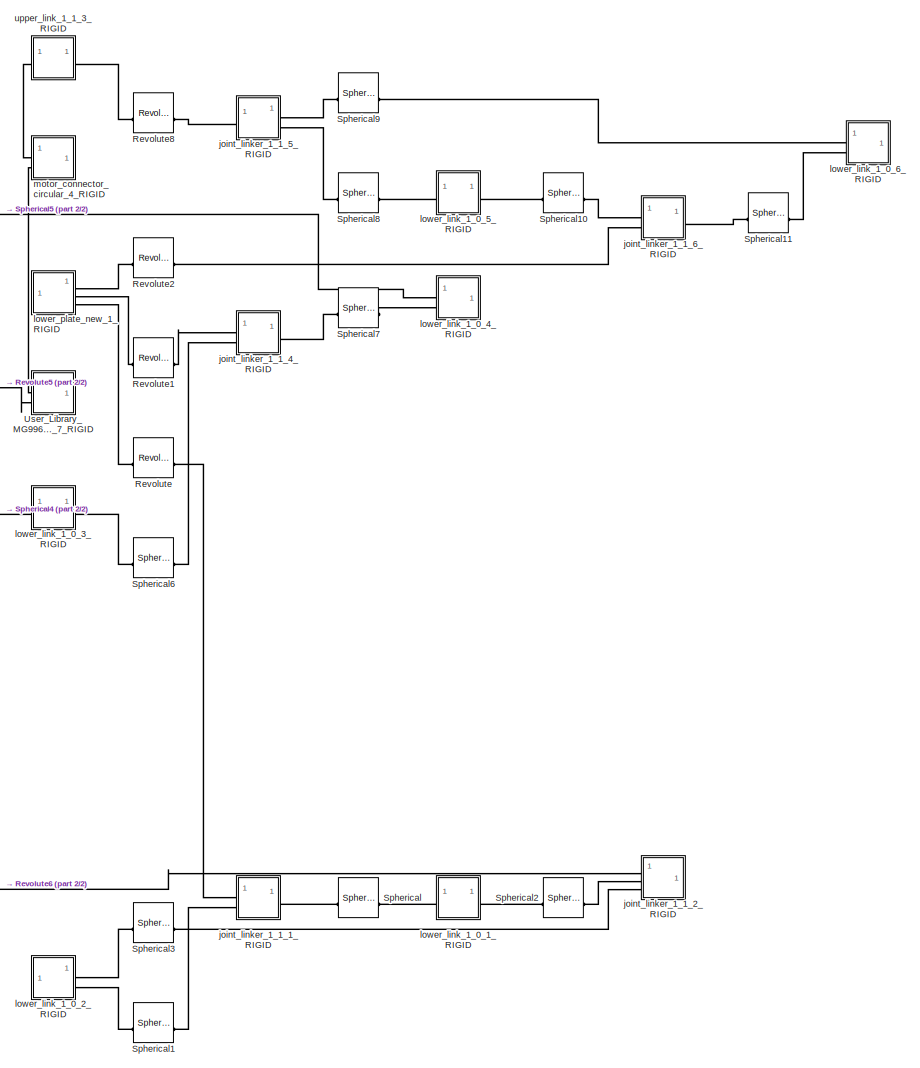
[diagram: root canvas - part 1/2, right side, full height]
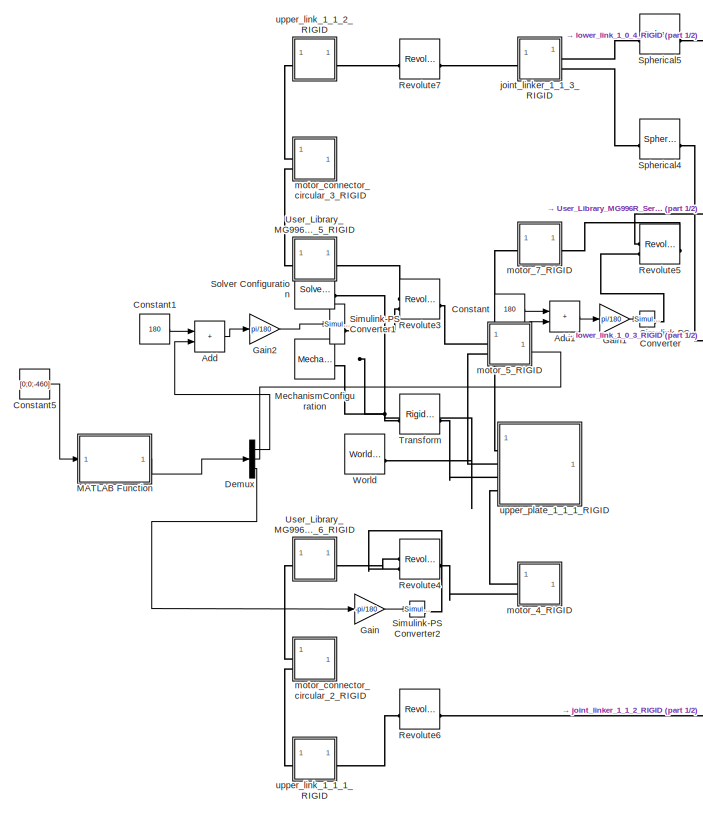
[diagram: root canvas - part 2/2, left side, full height]
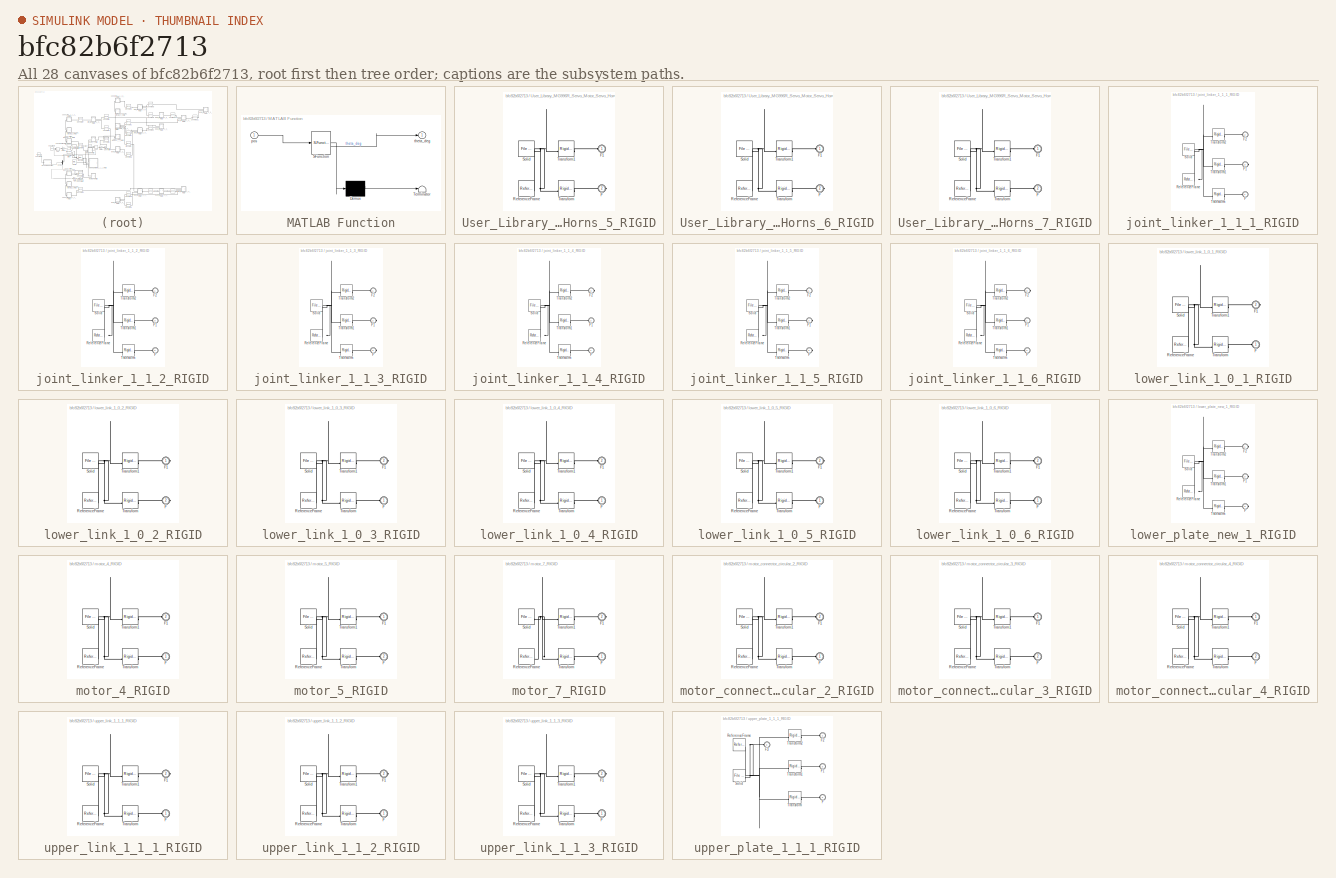
[diagram: thumbnail index - all 28 canvases of the model, root first then tree order]
MODEL slx_bfc82b6f2713
KIND model
CONFIG AbsTol = auto
CONFIG EnableMultiTasking = off
CONFIG FixedStep = auto
CONFIG MaxStep = auto
CONFIG MinStep = auto
CONFIG RelTol = 1e-3
CONFIG SampleTimeConstraint = Unconstrained
CONFIG SolverName = ode23t
CONFIG StartTime = 0.0
CONFIG StopTime = 2
WORKSPACE source: external: MATLAB File  (data not in archive)
BLOCK [Sum] Add
  IconShape = rectangular
BLOCK [Sum] Add1
  IconShape = rectangular
BLOCK [Constant] Constant
  Value = 180
BLOCK [Constant] Constant1
  Value = 180
BLOCK [Constant] Constant5
  Value = [0;0;-460]
BLOCK [Demux] Demux
  Outputs = 3
BLOCK [Gain] Gain
  Gain = -pi/180
BLOCK [Gain] Gain1
  Gain = pi/180
BLOCK [Gain] Gain2
  Gain = pi/180
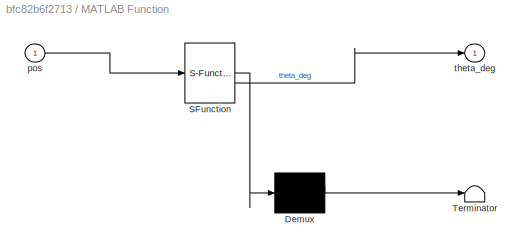
BLOCK [SubSystem] MATLAB Function
  ErrorFcn = Stateflow.Translate.translate
  LibrarySourceBlock = simulink/User-Defined\nFunctions/MATLAB Function
  PermitHierarchicalResolution = ExplicitOnly
  SFBlockType = MATLAB Function
  TreatAsAtomicUnit = on
BLOCK [Demux] MATLAB Function/ Demux 
  Outputs = 1
BLOCK [S-Function] MATLAB Function/ SFunction 
  EnableBusSupport = on
  FunctionName = sf_sfun
  PortCounts = [1 2]
  SFcnIsStateOwnerBlock = off
  SFunctionDeploymentMode = off
  Tag = Stateflow S-Function 2
BLOCK [Terminator] MATLAB Function/ Terminator 
BLOCK [Inport] MATLAB Function/pos
BLOCK [Outport] MATLAB Function/theta_deg
BLOCK [Reference] MechanismConfiguration  REF=sm_lib/Utilities/Mechanism
Configuration
  SourceBlock = sm_lib/Utilities/Mechanism\nConfiguration
  SourceType = Mechanism\nConfiguration
BLOCK [Reference] Revolute  REF=sm_lib/Joints/Revolute Joint
  SourceBlock = sm_lib/Joints/Revolute Joint
  SourceType = Revolute Joint
BLOCK [Reference] Revolute1  REF=sm_lib/Joints/Revolute Joint
  SourceBlock = sm_lib/Joints/Revolute Joint
  SourceType = Revolute Joint
BLOCK [Reference] Revolute2  REF=sm_lib/Joints/Revolute Joint
  SourceBlock = sm_lib/Joints/Revolute Joint
  SourceType = Revolute Joint
BLOCK [Reference] Revolute3  REF=sm_lib/Joints/Revolute Joint
  SourceBlock = sm_lib/Joints/Revolute Joint
  SourceType = Revolute Joint
BLOCK [Reference] Revolute4  REF=sm_lib/Joints/Revolute Joint
  SourceBlock = sm_lib/Joints/Revolute Joint
  SourceType = Revolute Joint
BLOCK [Reference] Revolute5  REF=sm_lib/Joints/Revolute Joint
  SourceBlock = sm_lib/Joints/Revolute Joint
  SourceType = Revolute Joint
BLOCK [Reference] Revolute6  REF=sm_lib/Joints/Revolute Joint
  SourceBlock = sm_lib/Joints/Revolute Joint
  SourceType = Revolute Joint
BLOCK [Reference] Revolute7  REF=sm_lib/Joints/Revolute Joint
  SourceBlock = sm_lib/Joints/Revolute Joint
  SourceType = Revolute Joint
BLOCK [Reference] Revolute8  REF=sm_lib/Joints/Revolute Joint
  SourceBlock = sm_lib/Joints/Revolute Joint
  SourceType = Revolute Joint
BLOCK [Reference] Simulink-PS Converter  REF=nesl_utility/Simulink-PS
Converter
  SourceBlock = nesl_utility/Simulink-PS\nConverter
  SourceType = Simulink-PS\nConverter
BLOCK [Reference] Simulink-PS Converter1  REF=nesl_utility/Simulink-PS
Converter
  SourceBlock = nesl_utility/Simulink-PS\nConverter
  SourceType = Simulink-PS\nConverter
BLOCK [Reference] Simulink-PS Converter2  REF=nesl_utility/Simulink-PS
Converter
  SourceBlock = nesl_utility/Simulink-PS\nConverter
  SourceType = Simulink-PS\nConverter
BLOCK [Reference] Solver Configuration  REF=nesl_utility/Solver
Configuration
  SourceBlock = nesl_utility/Solver\nConfiguration
  SourceType = Solver\nConfiguration
BLOCK [Reference] Spherical  REF=sm_lib/Joints/Spherical
Joint
  SourceBlock = sm_lib/Joints/Spherical\nJoint
  SourceType = Spherical\nJoint
BLOCK [Reference] Spherical1  REF=sm_lib/Joints/Spherical
Joint
  SourceBlock = sm_lib/Joints/Spherical\nJoint
  SourceType = Spherical\nJoint
BLOCK [Reference] Spherical10  REF=sm_lib/Joints/Spherical
Joint
  SourceBlock = sm_lib/Joints/Spherical\nJoint
  SourceType = Spherical\nJoint
BLOCK [Reference] Spherical11  REF=sm_lib/Joints/Spherical
Joint
  SourceBlock = sm_lib/Joints/Spherical\nJoint
  SourceType = Spherical\nJoint
BLOCK [Reference] Spherical2  REF=sm_lib/Joints/Spherical
Joint
  SourceBlock = sm_lib/Joints/Spherical\nJoint
  SourceType = Spherical\nJoint
BLOCK [Reference] Spherical3  REF=sm_lib/Joints/Spherical
Joint
  SourceBlock = sm_lib/Joints/Spherical\nJoint
  SourceType = Spherical\nJoint
BLOCK [Reference] Spherical4  REF=sm_lib/Joints/Spherical
Joint
  SourceBlock = sm_lib/Joints/Spherical\nJoint
  SourceType = Spherical\nJoint
BLOCK [Reference] Spherical5  REF=sm_lib/Joints/Spherical
Joint
  SourceBlock = sm_lib/Joints/Spherical\nJoint
  SourceType = Spherical\nJoint
BLOCK [Reference] Spherical6  REF=sm_lib/Joints/Spherical
Joint
  SourceBlock = sm_lib/Joints/Spherical\nJoint
  SourceType = Spherical\nJoint
BLOCK [Reference] Spherical7  REF=sm_lib/Joints/Spherical
Joint
  SourceBlock = sm_lib/Joints/Spherical\nJoint
  SourceType = Spherical\nJoint
BLOCK [Reference] Spherical8  REF=sm_lib/Joints/Spherical
Joint
  SourceBlock = sm_lib/Joints/Spherical\nJoint
  SourceType = Spherical\nJoint
BLOCK [Reference] Spherical9  REF=sm_lib/Joints/Spherical
Joint
  SourceBlock = sm_lib/Joints/Spherical\nJoint
  SourceType = Spherical\nJoint
BLOCK [Reference] Transform  REF=sm_lib/Frames and
Transforms/Rigid
Transform
  SourceBlock = sm_lib/Frames and\nTransforms/Rigid\nTransform
  SourceType = Rigid\nTransform
BLOCK [SubSystem] User_Library_MG996R_Servo_Motor_Servo_Horns_5_RIGID
BLOCK [PMIOPort] User_Library_MG996R_Servo_Motor_Servo_Horns_5_RIGID/F
  Port = 2
  Side = Right
BLOCK [PMIOPort] User_Library_MG996R_Servo_Motor_Servo_Horns_5_RIGID/F1
  Side = Left
BLOCK [Reference] User_Library_MG996R_Servo_Motor_Servo_Horns_5_RIGID/ReferenceFrame  REF=sm_lib/Frames and
Transforms/Reference
Frame
  SourceBlock = sm_lib/Frames and\nTransforms/Reference\nFrame
  SourceType = Reference\nFrame
BLOCK [Reference] User_Library_MG996R_Servo_Motor_Servo_Horns_5_RIGID/Solid  REF=sm_lib/Body Elements/File Solid
  SourceBlock = sm_lib/Body Elements/File Solid
  SourceType = File Solid
BLOCK [Reference] User_Library_MG996R_Servo_Motor_Servo_Horns_5_RIGID/Transform  REF=sm_lib/Frames and
Transforms/Rigid
Transform
  SourceBlock = sm_lib/Frames and\nTransforms/Rigid\nTransform
  SourceType = Rigid\nTransform
BLOCK [Reference] User_Library_MG996R_Servo_Motor_Servo_Horns_5_RIGID/Transform1  REF=sm_lib/Frames and
Transforms/Rigid
Transform
  SourceBlock = sm_lib/Frames and\nTransforms/Rigid\nTransform
  SourceType = Rigid\nTransform
BLOCK [SubSystem] User_Library_MG996R_Servo_Motor_Servo_Horns_6_RIGID
BLOCK [PMIOPort] User_Library_MG996R_Servo_Motor_Servo_Horns_6_RIGID/F
  Port = 2
  Side = Right
BLOCK [PMIOPort] User_Library_MG996R_Servo_Motor_Servo_Horns_6_RIGID/F1
  Side = Left
BLOCK [Reference] User_Library_MG996R_Servo_Motor_Servo_Horns_6_RIGID/ReferenceFrame  REF=sm_lib/Frames and
Transforms/Reference
Frame
  SourceBlock = sm_lib/Frames and\nTransforms/Reference\nFrame
  SourceType = Reference\nFrame
BLOCK [Reference] User_Library_MG996R_Servo_Motor_Servo_Horns_6_RIGID/Solid  REF=sm_lib/Body Elements/File Solid
  SourceBlock = sm_lib/Body Elements/File Solid
  SourceType = File Solid
BLOCK [Reference] User_Library_MG996R_Servo_Motor_Servo_Horns_6_RIGID/Transform  REF=sm_lib/Frames and
Transforms/Rigid
Transform
  SourceBlock = sm_lib/Frames and\nTransforms/Rigid\nTransform
  SourceType = Rigid\nTransform
BLOCK [Reference] User_Library_MG996R_Servo_Motor_Servo_Horns_6_RIGID/Transform1  REF=sm_lib/Frames and
Transforms/Rigid
Transform
  SourceBlock = sm_lib/Frames and\nTransforms/Rigid\nTransform
  SourceType = Rigid\nTransform
BLOCK [SubSystem] User_Library_MG996R_Servo_Motor_Servo_Horns_7_RIGID
BLOCK [PMIOPort] User_Library_MG996R_Servo_Motor_Servo_Horns_7_RIGID/F
  Port = 2
  Side = Left
BLOCK [PMIOPort] User_Library_MG996R_Servo_Motor_Servo_Horns_7_RIGID/F1
  Side = Left
BLOCK [Reference] User_Library_MG996R_Servo_Motor_Servo_Horns_7_RIGID/ReferenceFrame  REF=sm_lib/Frames and
Transforms/Reference
Frame
  SourceBlock = sm_lib/Frames and\nTransforms/Reference\nFrame
  SourceType = Reference\nFrame
BLOCK [Reference] User_Library_MG996R_Servo_Motor_Servo_Horns_7_RIGID/Solid  REF=sm_lib/Body Elements/File Solid
  SourceBlock = sm_lib/Body Elements/File Solid
  SourceType = File Solid
BLOCK [Reference] User_Library_MG996R_Servo_Motor_Servo_Horns_7_RIGID/Transform  REF=sm_lib/Frames and
Transforms/Rigid
Transform
  SourceBlock = sm_lib/Frames and\nTransforms/Rigid\nTransform
  SourceType = Rigid\nTransform
BLOCK [Reference] User_Library_MG996R_Servo_Motor_Servo_Horns_7_RIGID/Transform1  REF=sm_lib/Frames and
Transforms/Rigid
Transform
  SourceBlock = sm_lib/Frames and\nTransforms/Rigid\nTransform
  SourceType = Rigid\nTransform
BLOCK [Reference] World  REF=sm_lib/Frames and
Transforms/World Frame
  SourceBlock = sm_lib/Frames and\nTransforms/World Frame
  SourceType = World Frame
BLOCK [SubSystem] joint_linker_1_1_1_RIGID
BLOCK [PMIOPort] joint_linker_1_1_1_RIGID/F
  Side = Left
BLOCK [PMIOPort] joint_linker_1_1_1_RIGID/F1
  Port = 3
  Side = Right
BLOCK [PMIOPort] joint_linker_1_1_1_RIGID/F2
  Port = 2
  Side = Left
BLOCK [Reference] joint_linker_1_1_1_RIGID/ReferenceFrame  REF=sm_lib/Frames and
Transforms/Reference
Frame
  SourceBlock = sm_lib/Frames and\nTransforms/Reference\nFrame
  SourceType = Reference\nFrame
BLOCK [Reference] joint_linker_1_1_1_RIGID/Solid  REF=sm_lib/Body Elements/File Solid
  SourceBlock = sm_lib/Body Elements/File Solid
  SourceType = File Solid
BLOCK [Reference] joint_linker_1_1_1_RIGID/Transform  REF=sm_lib/Frames and
Transforms/Rigid
Transform
  SourceBlock = sm_lib/Frames and\nTransforms/Rigid\nTransform
  SourceType = Rigid\nTransform
BLOCK [Reference] joint_linker_1_1_1_RIGID/Transform1  REF=sm_lib/Frames and
Transforms/Rigid
Transform
  SourceBlock = sm_lib/Frames and\nTransforms/Rigid\nTransform
  SourceType = Rigid\nTransform
BLOCK [Reference] joint_linker_1_1_1_RIGID/Transform2  REF=sm_lib/Frames and
Transforms/Rigid
Transform
  SourceBlock = sm_lib/Frames and\nTransforms/Rigid\nTransform
  SourceType = Rigid\nTransform
BLOCK [SubSystem] joint_linker_1_1_2_RIGID
BLOCK [PMIOPort] joint_linker_1_1_2_RIGID/F
  Port = 2
  Side = Left
BLOCK [PMIOPort] joint_linker_1_1_2_RIGID/F1
  Port = 3
  Side = Left
BLOCK [PMIOPort] joint_linker_1_1_2_RIGID/F2
  Side = Left
BLOCK [Reference] joint_linker_1_1_2_RIGID/ReferenceFrame  REF=sm_lib/Frames and
Transforms/Reference
Frame
  SourceBlock = sm_lib/Frames and\nTransforms/Reference\nFrame
  SourceType = Reference\nFrame
BLOCK [Reference] joint_linker_1_1_2_RIGID/Solid  REF=sm_lib/Body Elements/File Solid
  SourceBlock = sm_lib/Body Elements/File Solid
  SourceType = File Solid
BLOCK [Reference] joint_linker_1_1_2_RIGID/Transform  REF=sm_lib/Frames and
Transforms/Rigid
Transform
  SourceBlock = sm_lib/Frames and\nTransforms/Rigid\nTransform
  SourceType = Rigid\nTransform
BLOCK [Reference] joint_linker_1_1_2_RIGID/Transform1  REF=sm_lib/Frames and
Transforms/Rigid
Transform
  SourceBlock = sm_lib/Frames and\nTransforms/Rigid\nTransform
  SourceType = Rigid\nTransform
BLOCK [Reference] joint_linker_1_1_2_RIGID/Transform2  REF=sm_lib/Frames and
Transforms/Rigid
Transform
  SourceBlock = sm_lib/Frames and\nTransforms/Rigid\nTransform
  SourceType = Rigid\nTransform
BLOCK [SubSystem] joint_linker_1_1_3_RIGID
BLOCK [PMIOPort] joint_linker_1_1_3_RIGID/F
  Port = 3
  Side = Right
BLOCK [PMIOPort] joint_linker_1_1_3_RIGID/F1
  Port = 2
  Side = Right
BLOCK [PMIOPort] joint_linker_1_1_3_RIGID/F2
  Side = Left
BLOCK [Reference] joint_linker_1_1_3_RIGID/ReferenceFrame  REF=sm_lib/Frames and
Transforms/Reference
Frame
  SourceBlock = sm_lib/Frames and\nTransforms/Reference\nFrame
  SourceType = Reference\nFrame
BLOCK [Reference] joint_linker_1_1_3_RIGID/Solid  REF=sm_lib/Body Elements/File Solid
  SourceBlock = sm_lib/Body Elements/File Solid
  SourceType = File Solid
BLOCK [Reference] joint_linker_1_1_3_RIGID/Transform  REF=sm_lib/Frames and
Transforms/Rigid
Transform
  SourceBlock = sm_lib/Frames and\nTransforms/Rigid\nTransform
  SourceType = Rigid\nTransform
BLOCK [Reference] joint_linker_1_1_3_RIGID/Transform1  REF=sm_lib/Frames and
Transforms/Rigid
Transform
  SourceBlock = sm_lib/Frames and\nTransforms/Rigid\nTransform
  SourceType = Rigid\nTransform
BLOCK [Reference] joint_linker_1_1_3_RIGID/Transform2  REF=sm_lib/Frames and
Transforms/Rigid
Transform
  SourceBlock = sm_lib/Frames and\nTransforms/Rigid\nTransform
  SourceType = Rigid\nTransform
BLOCK [SubSystem] joint_linker_1_1_4_RIGID
BLOCK [PMIOPort] joint_linker_1_1_4_RIGID/F
  Side = Left
BLOCK [PMIOPort] joint_linker_1_1_4_RIGID/F1
  Port = 2
  Side = Left
BLOCK [PMIOPort] joint_linker_1_1_4_RIGID/F2
  Port = 3
  Side = Right
BLOCK [Reference] joint_linker_1_1_4_RIGID/ReferenceFrame  REF=sm_lib/Frames and
Transforms/Reference
Frame
  SourceBlock = sm_lib/Frames and\nTransforms/Reference\nFrame
  SourceType = Reference\nFrame
BLOCK [Reference] joint_linker_1_1_4_RIGID/Solid  REF=sm_lib/Body Elements/File Solid
  SourceBlock = sm_lib/Body Elements/File Solid
  SourceType = File Solid
BLOCK [Reference] joint_linker_1_1_4_RIGID/Transform  REF=sm_lib/Frames and
Transforms/Rigid
Transform
  SourceBlock = sm_lib/Frames and\nTransforms/Rigid\nTransform
  SourceType = Rigid\nTransform
BLOCK [Reference] joint_linker_1_1_4_RIGID/Transform1  REF=sm_lib/Frames and
Transforms/Rigid
Transform
  SourceBlock = sm_lib/Frames and\nTransforms/Rigid\nTransform
  SourceType = Rigid\nTransform
BLOCK [Reference] joint_linker_1_1_4_RIGID/Transform2  REF=sm_lib/Frames and
Transforms/Rigid
Transform
  SourceBlock = sm_lib/Frames and\nTransforms/Rigid\nTransform
  SourceType = Rigid\nTransform
BLOCK [SubSystem] joint_linker_1_1_5_RIGID
BLOCK [PMIOPort] joint_linker_1_1_5_RIGID/F
  Port = 3
  Side = Right
BLOCK [PMIOPort] joint_linker_1_1_5_RIGID/F1
  Port = 2
  Side = Right
BLOCK [PMIOPort] joint_linker_1_1_5_RIGID/F2
  Side = Left
BLOCK [Reference] joint_linker_1_1_5_RIGID/ReferenceFrame  REF=sm_lib/Frames and
Transforms/Reference
Frame
  SourceBlock = sm_lib/Frames and\nTransforms/Reference\nFrame
  SourceType = Reference\nFrame
BLOCK [Reference] joint_linker_1_1_5_RIGID/Solid  REF=sm_lib/Body Elements/File Solid
  SourceBlock = sm_lib/Body Elements/File Solid
  SourceType = File Solid
BLOCK [Reference] joint_linker_1_1_5_RIGID/Transform  REF=sm_lib/Frames and
Transforms/Rigid
Transform
  SourceBlock = sm_lib/Frames and\nTransforms/Rigid\nTransform
  SourceType = Rigid\nTransform
BLOCK [Reference] joint_linker_1_1_5_RIGID/Transform1  REF=sm_lib/Frames and
Transforms/Rigid
Transform
  SourceBlock = sm_lib/Frames and\nTransforms/Rigid\nTransform
  SourceType = Rigid\nTransform
BLOCK [Reference] joint_linker_1_1_5_RIGID/Transform2  REF=sm_lib/Frames and
Transforms/Rigid
Transform
  SourceBlock = sm_lib/Frames and\nTransforms/Rigid\nTransform
  SourceType = Rigid\nTransform
BLOCK [SubSystem] joint_linker_1_1_6_RIGID
BLOCK [PMIOPort] joint_linker_1_1_6_RIGID/F
  Port = 2
  Side = Left
BLOCK [PMIOPort] joint_linker_1_1_6_RIGID/F1
  Side = Left
BLOCK [PMIOPort] joint_linker_1_1_6_RIGID/F2
  Port = 3
  Side = Right
BLOCK [Reference] joint_linker_1_1_6_RIGID/ReferenceFrame  REF=sm_lib/Frames and
Transforms/Reference
Frame
  SourceBlock = sm_lib/Frames and\nTransforms/Reference\nFrame
  SourceType = Reference\nFrame
BLOCK [Reference] joint_linker_1_1_6_RIGID/Solid  REF=sm_lib/Body Elements/File Solid
  SourceBlock = sm_lib/Body Elements/File Solid
  SourceType = File Solid
BLOCK [Reference] joint_linker_1_1_6_RIGID/Transform  REF=sm_lib/Frames and
Transforms/Rigid
Transform
  SourceBlock = sm_lib/Frames and\nTransforms/Rigid\nTransform
  SourceType = Rigid\nTransform
BLOCK [Reference] joint_linker_1_1_6_RIGID/Transform1  REF=sm_lib/Frames and
Transforms/Rigid
Transform
  SourceBlock = sm_lib/Frames and\nTransforms/Rigid\nTransform
  SourceType = Rigid\nTransform
BLOCK [Reference] joint_linker_1_1_6_RIGID/Transform2  REF=sm_lib/Frames and
Transforms/Rigid
Transform
  SourceBlock = sm_lib/Frames and\nTransforms/Rigid\nTransform
  SourceType = Rigid\nTransform
BLOCK [SubSystem] lower_link_1_0_1_RIGID
BLOCK [PMIOPort] lower_link_1_0_1_RIGID/F
  Side = Left
BLOCK [PMIOPort] lower_link_1_0_1_RIGID/F1
  Port = 2
  Side = Right
BLOCK [Reference] lower_link_1_0_1_RIGID/ReferenceFrame  REF=sm_lib/Frames and
Transforms/Reference
Frame
  SourceBlock = sm_lib/Frames and\nTransforms/Reference\nFrame
  SourceType = Reference\nFrame
BLOCK [Reference] lower_link_1_0_1_RIGID/Solid  REF=sm_lib/Body Elements/File Solid
  SourceBlock = sm_lib/Body Elements/File Solid
  SourceType = File Solid
BLOCK [Reference] lower_link_1_0_1_RIGID/Transform  REF=sm_lib/Frames and
Transforms/Rigid
Transform
  SourceBlock = sm_lib/Frames and\nTransforms/Rigid\nTransform
  SourceType = Rigid\nTransform
BLOCK [Reference] lower_link_1_0_1_RIGID/Transform1  REF=sm_lib/Frames and
Transforms/Rigid
Transform
  SourceBlock = sm_lib/Frames and\nTransforms/Rigid\nTransform
  SourceType = Rigid\nTransform
BLOCK [SubSystem] lower_link_1_0_2_RIGID
BLOCK [PMIOPort] lower_link_1_0_2_RIGID/F
  Port = 2
  Side = Right
BLOCK [PMIOPort] lower_link_1_0_2_RIGID/F1
  Side = Right
BLOCK [Reference] lower_link_1_0_2_RIGID/ReferenceFrame  REF=sm_lib/Frames and
Transforms/Reference
Frame
  SourceBlock = sm_lib/Frames and\nTransforms/Reference\nFrame
  SourceType = Reference\nFrame
BLOCK [Reference] lower_link_1_0_2_RIGID/Solid  REF=sm_lib/Body Elements/File Solid
  SourceBlock = sm_lib/Body Elements/File Solid
  SourceType = File Solid
BLOCK [Reference] lower_link_1_0_2_RIGID/Transform  REF=sm_lib/Frames and
Transforms/Rigid
Transform
  SourceBlock = sm_lib/Frames and\nTransforms/Rigid\nTransform
  SourceType = Rigid\nTransform
BLOCK [Reference] lower_link_1_0_2_RIGID/Transform1  REF=sm_lib/Frames and
Transforms/Rigid
Transform
  SourceBlock = sm_lib/Frames and\nTransforms/Rigid\nTransform
  SourceType = Rigid\nTransform
BLOCK [SubSystem] lower_link_1_0_3_RIGID
BLOCK [PMIOPort] lower_link_1_0_3_RIGID/F
  Side = Left
BLOCK [PMIOPort] lower_link_1_0_3_RIGID/F1
  Port = 2
  Side = Right
BLOCK [Reference] lower_link_1_0_3_RIGID/ReferenceFrame  REF=sm_lib/Frames and
Transforms/Reference
Frame
  SourceBlock = sm_lib/Frames and\nTransforms/Reference\nFrame
  SourceType = Reference\nFrame
BLOCK [Reference] lower_link_1_0_3_RIGID/Solid  REF=sm_lib/Body Elements/File Solid
  SourceBlock = sm_lib/Body Elements/File Solid
  SourceType = File Solid
BLOCK [Reference] lower_link_1_0_3_RIGID/Transform  REF=sm_lib/Frames and
Transforms/Rigid
Transform
  SourceBlock = sm_lib/Frames and\nTransforms/Rigid\nTransform
  SourceType = Rigid\nTransform
BLOCK [Reference] lower_link_1_0_3_RIGID/Transform1  REF=sm_lib/Frames and
Transforms/Rigid
Transform
  SourceBlock = sm_lib/Frames and\nTransforms/Rigid\nTransform
  SourceType = Rigid\nTransform
BLOCK [SubSystem] lower_link_1_0_4_RIGID
BLOCK [PMIOPort] lower_link_1_0_4_RIGID/F
  Side = Left
BLOCK [PMIOPort] lower_link_1_0_4_RIGID/F1
  Port = 2
  Side = Left
BLOCK [Reference] lower_link_1_0_4_RIGID/ReferenceFrame  REF=sm_lib/Frames and
Transforms/Reference
Frame
  SourceBlock = sm_lib/Frames and\nTransforms/Reference\nFrame
  SourceType = Reference\nFrame
BLOCK [Reference] lower_link_1_0_4_RIGID/Solid  REF=sm_lib/Body Elements/File Solid
  SourceBlock = sm_lib/Body Elements/File Solid
  SourceType = File Solid
BLOCK [Reference] lower_link_1_0_4_RIGID/Transform  REF=sm_lib/Frames and
Transforms/Rigid
Transform
  SourceBlock = sm_lib/Frames and\nTransforms/Rigid\nTransform
  SourceType = Rigid\nTransform
BLOCK [Reference] lower_link_1_0_4_RIGID/Transform1  REF=sm_lib/Frames and
Transforms/Rigid
Transform
  SourceBlock = sm_lib/Frames and\nTransforms/Rigid\nTransform
  SourceType = Rigid\nTransform
BLOCK [SubSystem] lower_link_1_0_5_RIGID
BLOCK [PMIOPort] lower_link_1_0_5_RIGID/F
  Side = Left
BLOCK [PMIOPort] lower_link_1_0_5_RIGID/F1
  Port = 2
  Side = Right
BLOCK [Reference] lower_link_1_0_5_RIGID/ReferenceFrame  REF=sm_lib/Frames and
Transforms/Reference
Frame
  SourceBlock = sm_lib/Frames and\nTransforms/Reference\nFrame
  SourceType = Reference\nFrame
BLOCK [Reference] lower_link_1_0_5_RIGID/Solid  REF=sm_lib/Body Elements/File Solid
  SourceBlock = sm_lib/Body Elements/File Solid
  SourceType = File Solid
BLOCK [Reference] lower_link_1_0_5_RIGID/Transform  REF=sm_lib/Frames and
Transforms/Rigid
Transform
  SourceBlock = sm_lib/Frames and\nTransforms/Rigid\nTransform
  SourceType = Rigid\nTransform
BLOCK [Reference] lower_link_1_0_5_RIGID/Transform1  REF=sm_lib/Frames and
Transforms/Rigid
Transform
  SourceBlock = sm_lib/Frames and\nTransforms/Rigid\nTransform
  SourceType = Rigid\nTransform
BLOCK [SubSystem] lower_link_1_0_6_RIGID
BLOCK [PMIOPort] lower_link_1_0_6_RIGID/F
  Side = Left
BLOCK [PMIOPort] lower_link_1_0_6_RIGID/F1
  Port = 2
  Side = Left
BLOCK [Reference] lower_link_1_0_6_RIGID/ReferenceFrame  REF=sm_lib/Frames and
Transforms/Reference
Frame
  SourceBlock = sm_lib/Frames and\nTransforms/Reference\nFrame
  SourceType = Reference\nFrame
BLOCK [Reference] lower_link_1_0_6_RIGID/Solid  REF=sm_lib/Body Elements/File Solid
  SourceBlock = sm_lib/Body Elements/File Solid
  SourceType = File Solid
BLOCK [Reference] lower_link_1_0_6_RIGID/Transform  REF=sm_lib/Frames and
Transforms/Rigid
Transform
  SourceBlock = sm_lib/Frames and\nTransforms/Rigid\nTransform
  SourceType = Rigid\nTransform
BLOCK [Reference] lower_link_1_0_6_RIGID/Transform1  REF=sm_lib/Frames and
Transforms/Rigid
Transform
  SourceBlock = sm_lib/Frames and\nTransforms/Rigid\nTransform
  SourceType = Rigid\nTransform
BLOCK [SubSystem] lower_plate_new_1_RIGID
BLOCK [PMIOPort] lower_plate_new_1_RIGID/F
  Port = 3
  Side = Right
BLOCK [PMIOPort] lower_plate_new_1_RIGID/F1
  Port = 2
  Side = Right
BLOCK [PMIOPort] lower_plate_new_1_RIGID/F2
  Side = Right
BLOCK [Reference] lower_plate_new_1_RIGID/ReferenceFrame  REF=sm_lib/Frames and
Transforms/Reference
Frame
  SourceBlock = sm_lib/Frames and\nTransforms/Reference\nFrame
  SourceType = Reference\nFrame
BLOCK [Reference] lower_plate_new_1_RIGID/Solid  REF=sm_lib/Body Elements/File Solid
  SourceBlock = sm_lib/Body Elements/File Solid
  SourceType = File Solid
BLOCK [Reference] lower_plate_new_1_RIGID/Transform  REF=sm_lib/Frames and
Transforms/Rigid
Transform
  SourceBlock = sm_lib/Frames and\nTransforms/Rigid\nTransform
  SourceType = Rigid\nTransform
BLOCK [Reference] lower_plate_new_1_RIGID/Transform1  REF=sm_lib/Frames and
Transforms/Rigid
Transform
  SourceBlock = sm_lib/Frames and\nTransforms/Rigid\nTransform
  SourceType = Rigid\nTransform
BLOCK [Reference] lower_plate_new_1_RIGID/Transform2  REF=sm_lib/Frames and
Transforms/Rigid
Transform
  SourceBlock = sm_lib/Frames and\nTransforms/Rigid\nTransform
  SourceType = Rigid\nTransform
BLOCK [SubSystem] motor_4_RIGID
BLOCK [PMIOPort] motor_4_RIGID/F
  Side = Left
BLOCK [PMIOPort] motor_4_RIGID/F1
  Port = 2
  Side = Left
BLOCK [Reference] motor_4_RIGID/ReferenceFrame  REF=sm_lib/Frames and
Transforms/Reference
Frame
  SourceBlock = sm_lib/Frames and\nTransforms/Reference\nFrame
  SourceType = Reference\nFrame
BLOCK [Reference] motor_4_RIGID/Solid  REF=sm_lib/Body Elements/File Solid
  SourceBlock = sm_lib/Body Elements/File Solid
  SourceType = File Solid
BLOCK [Reference] motor_4_RIGID/Transform  REF=sm_lib/Frames and
Transforms/Rigid
Transform
  SourceBlock = sm_lib/Frames and\nTransforms/Rigid\nTransform
  SourceType = Rigid\nTransform
BLOCK [Reference] motor_4_RIGID/Transform1  REF=sm_lib/Frames and
Transforms/Rigid
Transform
  SourceBlock = sm_lib/Frames and\nTransforms/Rigid\nTransform
  SourceType = Rigid\nTransform
BLOCK [SubSystem] motor_5_RIGID
BLOCK [PMIOPort] motor_5_RIGID/F
  Port = 2
  Side = Left
BLOCK [PMIOPort] motor_5_RIGID/F1
  Side = Left
BLOCK [Reference] motor_5_RIGID/ReferenceFrame  REF=sm_lib/Frames and
Transforms/Reference
Frame
  SourceBlock = sm_lib/Frames and\nTransforms/Reference\nFrame
  SourceType = Reference\nFrame
BLOCK [Reference] motor_5_RIGID/Solid  REF=sm_lib/Body Elements/File Solid
  SourceBlock = sm_lib/Body Elements/File Solid
  SourceType = File Solid
BLOCK [Reference] motor_5_RIGID/Transform  REF=sm_lib/Frames and
Transforms/Rigid
Transform
  SourceBlock = sm_lib/Frames and\nTransforms/Rigid\nTransform
  SourceType = Rigid\nTransform
BLOCK [Reference] motor_5_RIGID/Transform1  REF=sm_lib/Frames and
Transforms/Rigid
Transform
  SourceBlock = sm_lib/Frames and\nTransforms/Rigid\nTransform
  SourceType = Rigid\nTransform
BLOCK [SubSystem] motor_7_RIGID
BLOCK [PMIOPort] motor_7_RIGID/F
  Side = Left
BLOCK [PMIOPort] motor_7_RIGID/F1
  Port = 2
  Side = Right
BLOCK [Reference] motor_7_RIGID/ReferenceFrame  REF=sm_lib/Frames and
Transforms/Reference
Frame
  SourceBlock = sm_lib/Frames and\nTransforms/Reference\nFrame
  SourceType = Reference\nFrame
BLOCK [Reference] motor_7_RIGID/Solid  REF=sm_lib/Body Elements/File Solid
  SourceBlock = sm_lib/Body Elements/File Solid
  SourceType = File Solid
BLOCK [Reference] motor_7_RIGID/Transform  REF=sm_lib/Frames and
Transforms/Rigid
Transform
  SourceBlock = sm_lib/Frames and\nTransforms/Rigid\nTransform
  SourceType = Rigid\nTransform
BLOCK [Reference] motor_7_RIGID/Transform1  REF=sm_lib/Frames and
Transforms/Rigid
Transform
  SourceBlock = sm_lib/Frames and\nTransforms/Rigid\nTransform
  SourceType = Rigid\nTransform
BLOCK [SubSystem] motor_connector_circular_2_RIGID
BLOCK [PMIOPort] motor_connector_circular_2_RIGID/F
  Side = Left
BLOCK [PMIOPort] motor_connector_circular_2_RIGID/F1
  Port = 2
  Side = Left
BLOCK [Reference] motor_connector_circular_2_RIGID/ReferenceFrame  REF=sm_lib/Frames and
Transforms/Reference
Frame
  SourceBlock = sm_lib/Frames and\nTransforms/Reference\nFrame
  SourceType = Reference\nFrame
BLOCK [Reference] motor_connector_circular_2_RIGID/Solid  REF=sm_lib/Body Elements/File Solid
  SourceBlock = sm_lib/Body Elements/File Solid
  SourceType = File Solid
BLOCK [Reference] motor_connector_circular_2_RIGID/Transform  REF=sm_lib/Frames and
Transforms/Rigid
Transform
  SourceBlock = sm_lib/Frames and\nTransforms/Rigid\nTransform
  SourceType = Rigid\nTransform
BLOCK [Reference] motor_connector_circular_2_RIGID/Transform1  REF=sm_lib/Frames and
Transforms/Rigid
Transform
  SourceBlock = sm_lib/Frames and\nTransforms/Rigid\nTransform
  SourceType = Rigid\nTransform
BLOCK [SubSystem] motor_connector_circular_3_RIGID
BLOCK [PMIOPort] motor_connector_circular_3_RIGID/F
  Port = 2
  Side = Left
BLOCK [PMIOPort] motor_connector_circular_3_RIGID/F1
  Side = Left
BLOCK [Reference] motor_connector_circular_3_RIGID/ReferenceFrame  REF=sm_lib/Frames and
Transforms/Reference
Frame
  SourceBlock = sm_lib/Frames and\nTransforms/Reference\nFrame
  SourceType = Reference\nFrame
BLOCK [Reference] motor_connector_circular_3_RIGID/Solid  REF=sm_lib/Body Elements/File Solid
  SourceBlock = sm_lib/Body Elements/File Solid
  SourceType = File Solid
BLOCK [Reference] motor_connector_circular_3_RIGID/Transform  REF=sm_lib/Frames and
Transforms/Rigid
Transform
  SourceBlock = sm_lib/Frames and\nTransforms/Rigid\nTransform
  SourceType = Rigid\nTransform
BLOCK [Reference] motor_connector_circular_3_RIGID/Transform1  REF=sm_lib/Frames and
Transforms/Rigid
Transform
  SourceBlock = sm_lib/Frames and\nTransforms/Rigid\nTransform
  SourceType = Rigid\nTransform
BLOCK [SubSystem] motor_connector_circular_4_RIGID
BLOCK [PMIOPort] motor_connector_circular_4_RIGID/F
  Port = 2
  Side = Left
BLOCK [PMIOPort] motor_connector_circular_4_RIGID/F1
  Side = Left
BLOCK [Reference] motor_connector_circular_4_RIGID/ReferenceFrame  REF=sm_lib/Frames and
Transforms/Reference
Frame
  SourceBlock = sm_lib/Frames and\nTransforms/Reference\nFrame
  SourceType = Reference\nFrame
BLOCK [Reference] motor_connector_circular_4_RIGID/Solid  REF=sm_lib/Body Elements/File Solid
  SourceBlock = sm_lib/Body Elements/File Solid
  SourceType = File Solid
BLOCK [Reference] motor_connector_circular_4_RIGID/Transform  REF=sm_lib/Frames and
Transforms/Rigid
Transform
  SourceBlock = sm_lib/Frames and\nTransforms/Rigid\nTransform
  SourceType = Rigid\nTransform
BLOCK [Reference] motor_connector_circular_4_RIGID/Transform1  REF=sm_lib/Frames and
Transforms/Rigid
Transform
  SourceBlock = sm_lib/Frames and\nTransforms/Rigid\nTransform
  SourceType = Rigid\nTransform
BLOCK [SubSystem] upper_link_1_1_1_RIGID
BLOCK [PMIOPort] upper_link_1_1_1_RIGID/F
  Side = Left
BLOCK [PMIOPort] upper_link_1_1_1_RIGID/F1
  Port = 2
  Side = Right
BLOCK [Reference] upper_link_1_1_1_RIGID/ReferenceFrame  REF=sm_lib/Frames and
Transforms/Reference
Frame
  SourceBlock = sm_lib/Frames and\nTransforms/Reference\nFrame
  SourceType = Reference\nFrame
BLOCK [Reference] upper_link_1_1_1_RIGID/Solid  REF=sm_lib/Body Elements/File Solid
  SourceBlock = sm_lib/Body Elements/File Solid
  SourceType = File Solid
BLOCK [Reference] upper_link_1_1_1_RIGID/Transform  REF=sm_lib/Frames and
Transforms/Rigid
Transform
  SourceBlock = sm_lib/Frames and\nTransforms/Rigid\nTransform
  SourceType = Rigid\nTransform
BLOCK [Reference] upper_link_1_1_1_RIGID/Transform1  REF=sm_lib/Frames and
Transforms/Rigid
Transform
  SourceBlock = sm_lib/Frames and\nTransforms/Rigid\nTransform
  SourceType = Rigid\nTransform
BLOCK [SubSystem] upper_link_1_1_2_RIGID
BLOCK [PMIOPort] upper_link_1_1_2_RIGID/F
  Side = Left
BLOCK [PMIOPort] upper_link_1_1_2_RIGID/F1
  Port = 2
  Side = Right
BLOCK [Reference] upper_link_1_1_2_RIGID/ReferenceFrame  REF=sm_lib/Frames and
Transforms/Reference
Frame
  SourceBlock = sm_lib/Frames and\nTransforms/Reference\nFrame
  SourceType = Reference\nFrame
BLOCK [Reference] upper_link_1_1_2_RIGID/Solid  REF=sm_lib/Body Elements/File Solid
  SourceBlock = sm_lib/Body Elements/File Solid
  SourceType = File Solid
BLOCK [Reference] upper_link_1_1_2_RIGID/Transform  REF=sm_lib/Frames and
Transforms/Rigid
Transform
  SourceBlock = sm_lib/Frames and\nTransforms/Rigid\nTransform
  SourceType = Rigid\nTransform
BLOCK [Reference] upper_link_1_1_2_RIGID/Transform1  REF=sm_lib/Frames and
Transforms/Rigid
Transform
  SourceBlock = sm_lib/Frames and\nTransforms/Rigid\nTransform
  SourceType = Rigid\nTransform
BLOCK [SubSystem] upper_link_1_1_3_RIGID
BLOCK [PMIOPort] upper_link_1_1_3_RIGID/F
  Side = Left
BLOCK [PMIOPort] upper_link_1_1_3_RIGID/F1
  Port = 2
  Side = Right
BLOCK [Reference] upper_link_1_1_3_RIGID/ReferenceFrame  REF=sm_lib/Frames and
Transforms/Reference
Frame
  SourceBlock = sm_lib/Frames and\nTransforms/Reference\nFrame
  SourceType = Reference\nFrame
BLOCK [Reference] upper_link_1_1_3_RIGID/Solid  REF=sm_lib/Body Elements/File Solid
  SourceBlock = sm_lib/Body Elements/File Solid
  SourceType = File Solid
BLOCK [Reference] upper_link_1_1_3_RIGID/Transform  REF=sm_lib/Frames and
Transforms/Rigid
Transform
  SourceBlock = sm_lib/Frames and\nTransforms/Rigid\nTransform
  SourceType = Rigid\nTransform
BLOCK [Reference] upper_link_1_1_3_RIGID/Transform1  REF=sm_lib/Frames and
Transforms/Rigid
Transform
  SourceBlock = sm_lib/Frames and\nTransforms/Rigid\nTransform
  SourceType = Rigid\nTransform
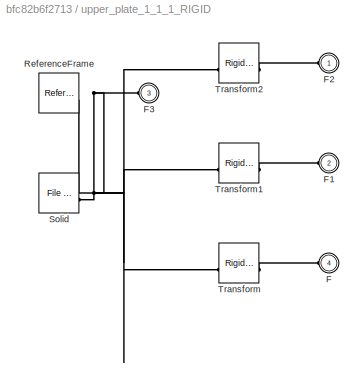
BLOCK [SubSystem] upper_plate_1_1_1_RIGID
BLOCK [PMIOPort] upper_plate_1_1_1_RIGID/F
  Port = 4
  Side = Left
BLOCK [PMIOPort] upper_plate_1_1_1_RIGID/F1
  Port = 2
  Side = Left
BLOCK [PMIOPort] upper_plate_1_1_1_RIGID/F2
  Side = Left
BLOCK [PMIOPort] upper_plate_1_1_1_RIGID/F3
  Port = 3
  Side = Left
BLOCK [Reference] upper_plate_1_1_1_RIGID/ReferenceFrame  REF=sm_lib/Frames and
Transforms/Reference
Frame
  SourceBlock = sm_lib/Frames and\nTransforms/Reference\nFrame
  SourceType = Reference\nFrame
BLOCK [Reference] upper_plate_1_1_1_RIGID/Solid  REF=sm_lib/Body Elements/File Solid
  SourceBlock = sm_lib/Body Elements/File Solid
  SourceType = File Solid
BLOCK [Reference] upper_plate_1_1_1_RIGID/Transform  REF=sm_lib/Frames and
Transforms/Rigid
Transform
  SourceBlock = sm_lib/Frames and\nTransforms/Rigid\nTransform
  SourceType = Rigid\nTransform
BLOCK [Reference] upper_plate_1_1_1_RIGID/Transform1  REF=sm_lib/Frames and
Transforms/Rigid
Transform
  SourceBlock = sm_lib/Frames and\nTransforms/Rigid\nTransform
  SourceType = Rigid\nTransform
BLOCK [Reference] upper_plate_1_1_1_RIGID/Transform2  REF=sm_lib/Frames and
Transforms/Rigid
Transform
  SourceBlock = sm_lib/Frames and\nTransforms/Rigid\nTransform
  SourceType = Rigid\nTransform
LINE Add1:1 -> Gain1:1
LINE Add:1 -> Gain2:1
LINE Constant1:1 -> Add:1
LINE Constant5:1 -> MATLAB Function:1
LINE Constant:1 -> Add1:1
LINE Demux:1 -> Add:2
LINE Demux:2 -> Add1:2
LINE Demux:3 -> Gain:1
LINE Gain1:1 -> Simulink-PS Converter:1
LINE Gain2:1 -> Simulink-PS Converter1:1
LINE Gain:1 -> Simulink-PS Converter2:1
LINE MATLAB Function:1 -> Demux:1
PNET net1: MechanismConfiguration:RConn1 -- Solver Configuration:RConn1 -- Transform:LConn1 -- World:RConn1
PLINE Revolute1:LConn1 -- lower_plate_new_1_RIGID:RConn2
PLINE Revolute1:RConn1 -- joint_linker_1_1_4_RIGID:LConn1
PLINE Revolute2:LConn1 -- lower_plate_new_1_RIGID:RConn1
PLINE Revolute2:RConn1 -- joint_linker_1_1_6_RIGID:LConn2
PLINE Revolute3:LConn1 -- User_Library_MG996R_Servo_Motor_Servo_Horns_5_RIGID:RConn1
PLINE Revolute3:LConn2 -- Simulink-PS Converter1:RConn1
PLINE Revolute3:RConn1 -- motor_5_RIGID:LConn1
PLINE Revolute4:LConn1 -- User_Library_MG996R_Servo_Motor_Servo_Horns_6_RIGID:RConn1
PLINE Revolute4:LConn2 -- Simulink-PS Converter2:RConn1
PLINE Revolute4:RConn1 -- motor_4_RIGID:LConn2
PLINE Revolute5:LConn1 -- User_Library_MG996R_Servo_Motor_Servo_Horns_7_RIGID:LConn2
PLINE Revolute5:LConn2 -- Simulink-PS Converter:RConn1
PLINE Revolute5:RConn1 -- motor_7_RIGID:RConn1
PLINE Revolute6:LConn1 -- upper_link_1_1_1_RIGID:RConn1
PLINE Revolute6:RConn1 -- joint_linker_1_1_2_RIGID:LConn1
PLINE Revolute7:LConn1 -- upper_link_1_1_2_RIGID:RConn1
PLINE Revolute7:RConn1 -- joint_linker_1_1_3_RIGID:LConn1
PLINE Revolute8:LConn1 -- upper_link_1_1_3_RIGID:RConn1
PLINE Revolute8:RConn1 -- joint_linker_1_1_5_RIGID:LConn1
PLINE Revolute:LConn1 -- lower_plate_new_1_RIGID:RConn3
PLINE Revolute:RConn1 -- joint_linker_1_1_1_RIGID:LConn1
PLINE Spherical10:LConn1 -- lower_link_1_0_5_RIGID:RConn1
PLINE Spherical10:RConn1 -- joint_linker_1_1_6_RIGID:LConn1
PLINE Spherical11:LConn1 -- joint_linker_1_1_6_RIGID:RConn1
PLINE Spherical11:RConn1 -- lower_link_1_0_6_RIGID:LConn2
PLINE Spherical1:LConn1 -- lower_link_1_0_2_RIGID:RConn2
PLINE Spherical1:RConn1 -- joint_linker_1_1_1_RIGID:LConn2
PLINE Spherical2:LConn1 -- lower_link_1_0_1_RIGID:RConn1
PLINE Spherical2:RConn1 -- joint_linker_1_1_2_RIGID:LConn2
PLINE Spherical3:LConn1 -- lower_link_1_0_2_RIGID:RConn1
PLINE Spherical3:RConn1 -- joint_linker_1_1_2_RIGID:LConn3
PLINE Spherical4:LConn1 -- joint_linker_1_1_3_RIGID:RConn2
PLINE Spherical4:RConn1 -- lower_link_1_0_3_RIGID:LConn1
PLINE Spherical5:LConn1 -- joint_linker_1_1_3_RIGID:RConn1
PLINE Spherical5:RConn1 -- lower_link_1_0_4_RIGID:LConn1
PLINE Spherical6:LConn1 -- lower_link_1_0_3_RIGID:RConn1
PLINE Spherical6:RConn1 -- joint_linker_1_1_4_RIGID:LConn2
PLINE Spherical7:LConn1 -- joint_linker_1_1_4_RIGID:RConn1
PLINE Spherical7:RConn1 -- lower_link_1_0_4_RIGID:LConn2
PLINE Spherical8:LConn1 -- joint_linker_1_1_5_RIGID:RConn2
PLINE Spherical8:RConn1 -- lower_link_1_0_5_RIGID:LConn1
PLINE Spherical9:LConn1 -- joint_linker_1_1_5_RIGID:RConn1
PLINE Spherical9:RConn1 -- lower_link_1_0_6_RIGID:LConn1
PLINE Spherical:LConn1 -- joint_linker_1_1_1_RIGID:RConn1
PLINE Spherical:RConn1 -- lower_link_1_0_1_RIGID:LConn1
PLINE Transform:RConn1 -- upper_plate_1_1_1_RIGID:LConn3
PLINE User_Library_MG996R_Servo_Motor_Servo_Horns_5_RIGID/F1:RConn1 -- User_Library_MG996R_Servo_Motor_Servo_Horns_5_RIGID/Transform1:RConn1
PLINE User_Library_MG996R_Servo_Motor_Servo_Horns_5_RIGID/F:RConn1 -- User_Library_MG996R_Servo_Motor_Servo_Horns_5_RIGID/Transform:RConn1
PNET net2: User_Library_MG996R_Servo_Motor_Servo_Horns_5_RIGID/ReferenceFrame:RConn1 -- User_Library_MG996R_Servo_Motor_Servo_Horns_5_RIGID/Solid:RConn1 -- User_Library_MG996R_Servo_Motor_Servo_Horns_5_RIGID/Transform1:LConn1 -- User_Library_MG996R_Servo_Motor_Servo_Horns_5_RIGID/Transform:LConn1
PLINE User_Library_MG996R_Servo_Motor_Servo_Horns_5_RIGID:LConn1 -- motor_connector_circular_3_RIGID:LConn2
PLINE User_Library_MG996R_Servo_Motor_Servo_Horns_6_RIGID/F1:RConn1 -- User_Library_MG996R_Servo_Motor_Servo_Horns_6_RIGID/Transform1:RConn1
PLINE User_Library_MG996R_Servo_Motor_Servo_Horns_6_RIGID/F:RConn1 -- User_Library_MG996R_Servo_Motor_Servo_Horns_6_RIGID/Transform:RConn1
PNET net3: User_Library_MG996R_Servo_Motor_Servo_Horns_6_RIGID/ReferenceFrame:RConn1 -- User_Library_MG996R_Servo_Motor_Servo_Horns_6_RIGID/Solid:RConn1 -- User_Library_MG996R_Servo_Motor_Servo_Horns_6_RIGID/Transform1:LConn1 -- User_Library_MG996R_Servo_Motor_Servo_Horns_6_RIGID/Transform:LConn1
PLINE User_Library_MG996R_Servo_Motor_Servo_Horns_6_RIGID:LConn1 -- motor_connector_circular_2_RIGID:LConn1
PLINE User_Library_MG996R_Servo_Motor_Servo_Horns_7_RIGID/F1:RConn1 -- User_Library_MG996R_Servo_Motor_Servo_Horns_7_RIGID/Transform1:RConn1
PLINE User_Library_MG996R_Servo_Motor_Servo_Horns_7_RIGID/F:RConn1 -- User_Library_MG996R_Servo_Motor_Servo_Horns_7_RIGID/Transform:RConn1
PNET net4: User_Library_MG996R_Servo_Motor_Servo_Horns_7_RIGID/ReferenceFrame:RConn1 -- User_Library_MG996R_Servo_Motor_Servo_Horns_7_RIGID/Solid:RConn1 -- User_Library_MG996R_Servo_Motor_Servo_Horns_7_RIGID/Transform1:LConn1 -- User_Library_MG996R_Servo_Motor_Servo_Horns_7_RIGID/Transform:LConn1
PLINE User_Library_MG996R_Servo_Motor_Servo_Horns_7_RIGID:LConn1 -- motor_connector_circular_4_RIGID:LConn2
PLINE joint_linker_1_1_1_RIGID/F1:RConn1 -- joint_linker_1_1_1_RIGID/Transform1:RConn1
PLINE joint_linker_1_1_1_RIGID/F2:RConn1 -- joint_linker_1_1_1_RIGID/Transform2:RConn1
PLINE joint_linker_1_1_1_RIGID/F:RConn1 -- joint_linker_1_1_1_RIGID/Transform:RConn1
PNET net5: joint_linker_1_1_1_RIGID/ReferenceFrame:RConn1 -- joint_linker_1_1_1_RIGID/Solid:RConn1 -- joint_linker_1_1_1_RIGID/Transform1:LConn1 -- joint_linker_1_1_1_RIGID/Transform2:LConn1 -- joint_linker_1_1_1_RIGID/Transform:LConn1
PLINE joint_linker_1_1_2_RIGID/F1:RConn1 -- joint_linker_1_1_2_RIGID/Transform1:RConn1
PLINE joint_linker_1_1_2_RIGID/F2:RConn1 -- joint_linker_1_1_2_RIGID/Transform2:RConn1
PLINE joint_linker_1_1_2_RIGID/F:RConn1 -- joint_linker_1_1_2_RIGID/Transform:RConn1
PNET net6: joint_linker_1_1_2_RIGID/ReferenceFrame:RConn1 -- joint_linker_1_1_2_RIGID/Solid:RConn1 -- joint_linker_1_1_2_RIGID/Transform1:LConn1 -- joint_linker_1_1_2_RIGID/Transform2:LConn1 -- joint_linker_1_1_2_RIGID/Transform:LConn1
PLINE joint_linker_1_1_3_RIGID/F1:RConn1 -- joint_linker_1_1_3_RIGID/Transform1:RConn1
PLINE joint_linker_1_1_3_RIGID/F2:RConn1 -- joint_linker_1_1_3_RIGID/Transform2:RConn1
PLINE joint_linker_1_1_3_RIGID/F:RConn1 -- joint_linker_1_1_3_RIGID/Transform:RConn1
PNET net7: joint_linker_1_1_3_RIGID/ReferenceFrame:RConn1 -- joint_linker_1_1_3_RIGID/Solid:RConn1 -- joint_linker_1_1_3_RIGID/Transform1:LConn1 -- joint_linker_1_1_3_RIGID/Transform2:LConn1 -- joint_linker_1_1_3_RIGID/Transform:LConn1
PLINE joint_linker_1_1_4_RIGID/F1:RConn1 -- joint_linker_1_1_4_RIGID/Transform1:RConn1
PLINE joint_linker_1_1_4_RIGID/F2:RConn1 -- joint_linker_1_1_4_RIGID/Transform2:RConn1
PLINE joint_linker_1_1_4_RIGID/F:RConn1 -- joint_linker_1_1_4_RIGID/Transform:RConn1
PNET net8: joint_linker_1_1_4_RIGID/ReferenceFrame:RConn1 -- joint_linker_1_1_4_RIGID/Solid:RConn1 -- joint_linker_1_1_4_RIGID/Transform1:LConn1 -- joint_linker_1_1_4_RIGID/Transform2:LConn1 -- joint_linker_1_1_4_RIGID/Transform:LConn1
PLINE joint_linker_1_1_5_RIGID/F1:RConn1 -- joint_linker_1_1_5_RIGID/Transform1:RConn1
PLINE joint_linker_1_1_5_RIGID/F2:RConn1 -- joint_linker_1_1_5_RIGID/Transform2:RConn1
PLINE joint_linker_1_1_5_RIGID/F:RConn1 -- joint_linker_1_1_5_RIGID/Transform:RConn1
PNET net9: joint_linker_1_1_5_RIGID/ReferenceFrame:RConn1 -- joint_linker_1_1_5_RIGID/Solid:RConn1 -- joint_linker_1_1_5_RIGID/Transform1:LConn1 -- joint_linker_1_1_5_RIGID/Transform2:LConn1 -- joint_linker_1_1_5_RIGID/Transform:LConn1
PLINE joint_linker_1_1_6_RIGID/F1:RConn1 -- joint_linker_1_1_6_RIGID/Transform1:RConn1
PLINE joint_linker_1_1_6_RIGID/F2:RConn1 -- joint_linker_1_1_6_RIGID/Transform2:RConn1
PLINE joint_linker_1_1_6_RIGID/F:RConn1 -- joint_linker_1_1_6_RIGID/Transform:RConn1
PNET net10: joint_linker_1_1_6_RIGID/ReferenceFrame:RConn1 -- joint_linker_1_1_6_RIGID/Solid:RConn1 -- joint_linker_1_1_6_RIGID/Transform1:LConn1 -- joint_linker_1_1_6_RIGID/Transform2:LConn1 -- joint_linker_1_1_6_RIGID/Transform:LConn1
PLINE lower_link_1_0_1_RIGID/F1:RConn1 -- lower_link_1_0_1_RIGID/Transform1:RConn1
PLINE lower_link_1_0_1_RIGID/F:RConn1 -- lower_link_1_0_1_RIGID/Transform:RConn1
PNET net11: lower_link_1_0_1_RIGID/ReferenceFrame:RConn1 -- lower_link_1_0_1_RIGID/Solid:RConn1 -- lower_link_1_0_1_RIGID/Transform1:LConn1 -- lower_link_1_0_1_RIGID/Transform:LConn1
PLINE lower_link_1_0_2_RIGID/F1:RConn1 -- lower_link_1_0_2_RIGID/Transform1:RConn1
PLINE lower_link_1_0_2_RIGID/F:RConn1 -- lower_link_1_0_2_RIGID/Transform:RConn1
PNET net12: lower_link_1_0_2_RIGID/ReferenceFrame:RConn1 -- lower_link_1_0_2_RIGID/Solid:RConn1 -- lower_link_1_0_2_RIGID/Transform1:LConn1 -- lower_link_1_0_2_RIGID/Transform:LConn1
PLINE lower_link_1_0_3_RIGID/F1:RConn1 -- lower_link_1_0_3_RIGID/Transform1:RConn1
PLINE lower_link_1_0_3_RIGID/F:RConn1 -- lower_link_1_0_3_RIGID/Transform:RConn1
PNET net13: lower_link_1_0_3_RIGID/ReferenceFrame:RConn1 -- lower_link_1_0_3_RIGID/Solid:RConn1 -- lower_link_1_0_3_RIGID/Transform1:LConn1 -- lower_link_1_0_3_RIGID/Transform:LConn1
PLINE lower_link_1_0_4_RIGID/F1:RConn1 -- lower_link_1_0_4_RIGID/Transform1:RConn1
PLINE lower_link_1_0_4_RIGID/F:RConn1 -- lower_link_1_0_4_RIGID/Transform:RConn1
PNET net14: lower_link_1_0_4_RIGID/ReferenceFrame:RConn1 -- lower_link_1_0_4_RIGID/Solid:RConn1 -- lower_link_1_0_4_RIGID/Transform1:LConn1 -- lower_link_1_0_4_RIGID/Transform:LConn1
PLINE lower_link_1_0_5_RIGID/F1:RConn1 -- lower_link_1_0_5_RIGID/Transform1:RConn1
PLINE lower_link_1_0_5_RIGID/F:RConn1 -- lower_link_1_0_5_RIGID/Transform:RConn1
PNET net15: lower_link_1_0_5_RIGID/ReferenceFrame:RConn1 -- lower_link_1_0_5_RIGID/Solid:RConn1 -- lower_link_1_0_5_RIGID/Transform1:LConn1 -- lower_link_1_0_5_RIGID/Transform:LConn1
PLINE lower_link_1_0_6_RIGID/F1:RConn1 -- lower_link_1_0_6_RIGID/Transform1:RConn1
PLINE lower_link_1_0_6_RIGID/F:RConn1 -- lower_link_1_0_6_RIGID/Transform:RConn1
PNET net16: lower_link_1_0_6_RIGID/ReferenceFrame:RConn1 -- lower_link_1_0_6_RIGID/Solid:RConn1 -- lower_link_1_0_6_RIGID/Transform1:LConn1 -- lower_link_1_0_6_RIGID/Transform:LConn1
PLINE lower_plate_new_1_RIGID/F1:RConn1 -- lower_plate_new_1_RIGID/Transform1:RConn1
PLINE lower_plate_new_1_RIGID/F2:RConn1 -- lower_plate_new_1_RIGID/Transform2:RConn1
PLINE lower_plate_new_1_RIGID/F:RConn1 -- lower_plate_new_1_RIGID/Transform:RConn1
PNET net17: lower_plate_new_1_RIGID/ReferenceFrame:RConn1 -- lower_plate_new_1_RIGID/Solid:RConn1 -- lower_plate_new_1_RIGID/Transform1:LConn1 -- lower_plate_new_1_RIGID/Transform2:LConn1 -- lower_plate_new_1_RIGID/Transform:LConn1
PLINE motor_4_RIGID/F1:RConn1 -- motor_4_RIGID/Transform1:RConn1
PLINE motor_4_RIGID/F:RConn1 -- motor_4_RIGID/Transform:RConn1
PNET net18: motor_4_RIGID/ReferenceFrame:RConn1 -- motor_4_RIGID/Solid:RConn1 -- motor_4_RIGID/Transform1:LConn1 -- motor_4_RIGID/Transform:LConn1
PLINE motor_4_RIGID:LConn1 -- upper_plate_1_1_1_RIGID:LConn4
PLINE motor_5_RIGID/F1:RConn1 -- motor_5_RIGID/Transform1:RConn1
PLINE motor_5_RIGID/F:RConn1 -- motor_5_RIGID/Transform:RConn1
PNET net19: motor_5_RIGID/ReferenceFrame:RConn1 -- motor_5_RIGID/Solid:RConn1 -- motor_5_RIGID/Transform1:LConn1 -- motor_5_RIGID/Transform:LConn1
PLINE motor_5_RIGID:LConn2 -- upper_plate_1_1_1_RIGID:LConn2
PLINE motor_7_RIGID/F1:RConn1 -- motor_7_RIGID/Transform1:RConn1
PLINE motor_7_RIGID/F:RConn1 -- motor_7_RIGID/Transform:RConn1
PNET net20: motor_7_RIGID/ReferenceFrame:RConn1 -- motor_7_RIGID/Solid:RConn1 -- motor_7_RIGID/Transform1:LConn1 -- motor_7_RIGID/Transform:LConn1
PLINE motor_7_RIGID:LConn1 -- upper_plate_1_1_1_RIGID:LConn1
PLINE motor_connector_circular_2_RIGID/F1:RConn1 -- motor_connector_circular_2_RIGID/Transform1:RConn1
PLINE motor_connector_circular_2_RIGID/F:RConn1 -- motor_connector_circular_2_RIGID/Transform:RConn1
PNET net21: motor_connector_circular_2_RIGID/ReferenceFrame:RConn1 -- motor_connector_circular_2_RIGID/Solid:RConn1 -- motor_connector_circular_2_RIGID/Transform1:LConn1 -- motor_connector_circular_2_RIGID/Transform:LConn1
PLINE motor_connector_circular_2_RIGID:LConn2 -- upper_link_1_1_1_RIGID:LConn1
PLINE motor_connector_circular_3_RIGID/F1:RConn1 -- motor_connector_circular_3_RIGID/Transform1:RConn1
PLINE motor_connector_circular_3_RIGID/F:RConn1 -- motor_connector_circular_3_RIGID/Transform:RConn1
PNET net22: motor_connector_circular_3_RIGID/ReferenceFrame:RConn1 -- motor_connector_circular_3_RIGID/Solid:RConn1 -- motor_connector_circular_3_RIGID/Transform1:LConn1 -- motor_connector_circular_3_RIGID/Transform:LConn1
PLINE motor_connector_circular_3_RIGID:LConn1 -- upper_link_1_1_2_RIGID:LConn1
PLINE motor_connector_circular_4_RIGID/F1:RConn1 -- motor_connector_circular_4_RIGID/Transform1:RConn1
PLINE motor_connector_circular_4_RIGID/F:RConn1 -- motor_connector_circular_4_RIGID/Transform:RConn1
PNET net23: motor_connector_circular_4_RIGID/ReferenceFrame:RConn1 -- motor_connector_circular_4_RIGID/Solid:RConn1 -- motor_connector_circular_4_RIGID/Transform1:LConn1 -- motor_connector_circular_4_RIGID/Transform:LConn1
PLINE motor_connector_circular_4_RIGID:LConn1 -- upper_link_1_1_3_RIGID:LConn1
PLINE upper_link_1_1_1_RIGID/F1:RConn1 -- upper_link_1_1_1_RIGID/Transform1:RConn1
PLINE upper_link_1_1_1_RIGID/F:RConn1 -- upper_link_1_1_1_RIGID/Transform:RConn1
PNET net24: upper_link_1_1_1_RIGID/ReferenceFrame:RConn1 -- upper_link_1_1_1_RIGID/Solid:RConn1 -- upper_link_1_1_1_RIGID/Transform1:LConn1 -- upper_link_1_1_1_RIGID/Transform:LConn1
PLINE upper_link_1_1_2_RIGID/F1:RConn1 -- upper_link_1_1_2_RIGID/Transform1:RConn1
PLINE upper_link_1_1_2_RIGID/F:RConn1 -- upper_link_1_1_2_RIGID/Transform:RConn1
PNET net25: upper_link_1_1_2_RIGID/ReferenceFrame:RConn1 -- upper_link_1_1_2_RIGID/Solid:RConn1 -- upper_link_1_1_2_RIGID/Transform1:LConn1 -- upper_link_1_1_2_RIGID/Transform:LConn1
PLINE upper_link_1_1_3_RIGID/F1:RConn1 -- upper_link_1_1_3_RIGID/Transform1:RConn1
PLINE upper_link_1_1_3_RIGID/F:RConn1 -- upper_link_1_1_3_RIGID/Transform:RConn1
PNET net26: upper_link_1_1_3_RIGID/ReferenceFrame:RConn1 -- upper_link_1_1_3_RIGID/Solid:RConn1 -- upper_link_1_1_3_RIGID/Transform1:LConn1 -- upper_link_1_1_3_RIGID/Transform:LConn1
PLINE upper_plate_1_1_1_RIGID/F1:RConn1 -- upper_plate_1_1_1_RIGID/Transform1:RConn1
PLINE upper_plate_1_1_1_RIGID/F2:RConn1 -- upper_plate_1_1_1_RIGID/Transform2:RConn1
PNET net27: upper_plate_1_1_1_RIGID/F3:RConn1 -- upper_plate_1_1_1_RIGID/ReferenceFrame:RConn1 -- upper_plate_1_1_1_RIGID/Solid:RConn1 -- upper_plate_1_1_1_RIGID/Transform1:LConn1 -- upper_plate_1_1_1_RIGID/Transform2:LConn1 -- upper_plate_1_1_1_RIGID/Transform:LConn1
PLINE upper_plate_1_1_1_RIGID/F:RConn1 -- upper_plate_1_1_1_RIGID/Transform:RConn1
note: PNET lines group multi-terminal physical nets as a canonical sorted terminal list (undirected conserving connections); 2-terminal nets keep the pairwise PLINE form
CHART MATLAB Function states=1 transitions=1
  STATE_LABEL 'eML_blk_kernel()'
  STATE_LABEL 'SCRIPT:\nfunction theta_deg = IKblock(pos)\n%#codegen\n% Wrapper for delta inverse kinematics (Simulink block)\n%\n% Input:  pos = [x; y; z]  (in mm)\n% Output: theta_deg = [θ1; θ2; θ3] in degrees\n\n% Extract position components\nx = pos(1);\ny = pos(2);\nz = pos(3);\n\n% --- Call your existing IK function ---\n[theta1, theta2, theta3, valid] = deltaIK(x, y, z);\n\n% Handle unreachable points (optional)\nif ~vali...<+130ch>'
CHART  states=0 transitions=0
